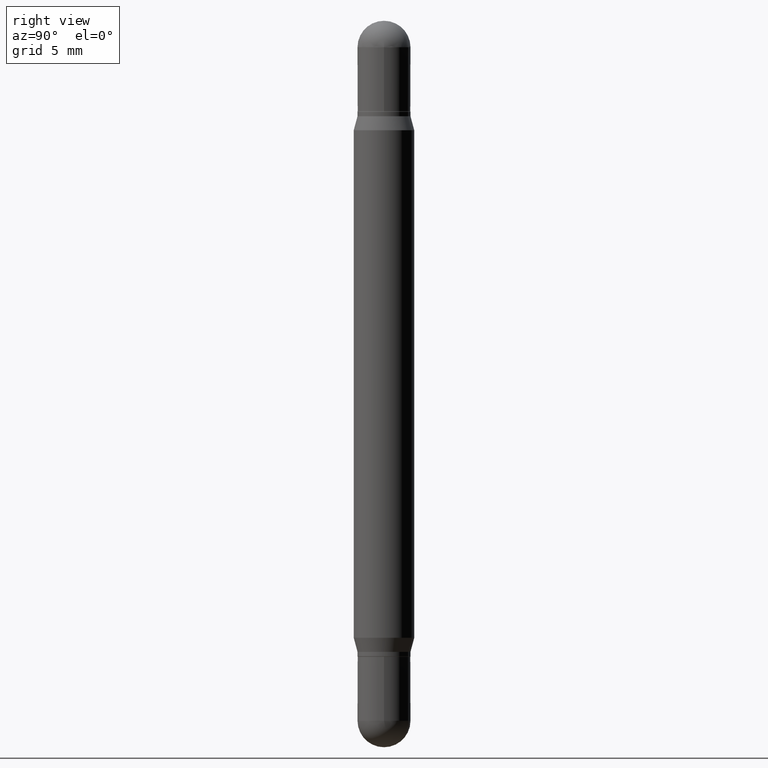
[diagram: clean part render]
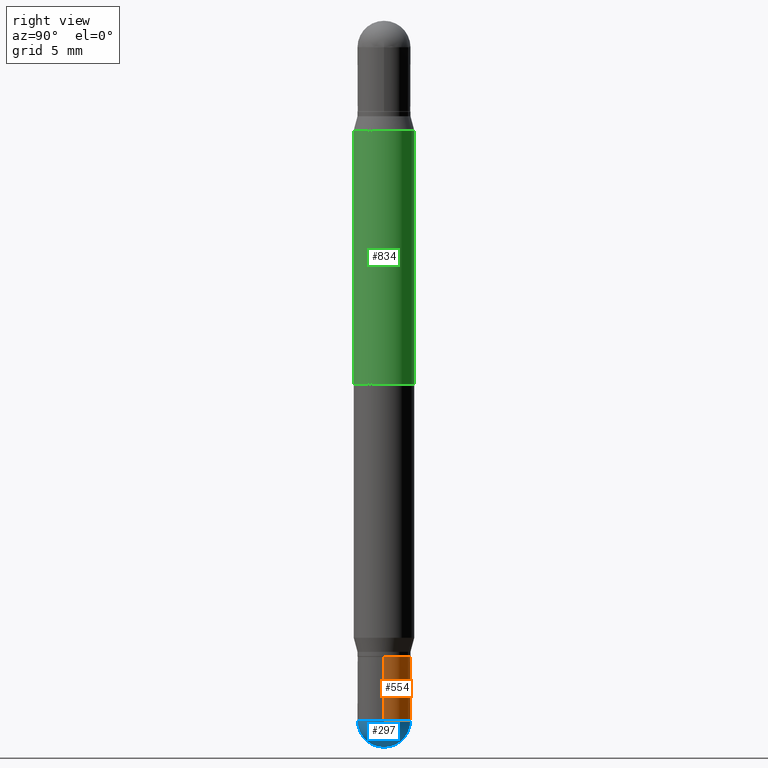
[diagram: same view with three faces highlighted in distinct colors, each labeled with its STEP entity id]
A machine part, right view with three faces highlighted in distinct colors.
Their STEP definitions:

[orange] entity #554 — the highlighted cylindrical surface (edge-blend (fillet) strip) has radius 1.3894 mm, axis along (-0, 0, 1).
#2 = CARTESIAN_POINT ( 'NONE',  ( 3.886668764608108330E-16, 0.05469999999999505119, -1.445300000000000251 ) ) ;
#11 = ORIENTED_EDGE ( 'NONE', *, *, #1096, .T. ) ;
#66 = CARTESIAN_POINT ( 'NONE',  ( 0.05470000000000000556, -5.197244546934962984E-15, -1.445300000000000029 ) ) ;
#76 = DIRECTION ( 'NONE',  ( 1.000000000000000000, -6.982962677686266711E-15, 4.876176775795935793E-29 ) ) ;
#105 = CIRCLE ( 'NONE', #950, 0.05470000000000000556 ) ;
#106 = DIRECTION ( 'NONE',  ( 1.000000000000000000, -6.982962677686260400E-15, 0.000000000000000000 ) ) ;
#147 = VERTEX_POINT ( 'NONE', #677 ) ;
#160 = VERTEX_POINT ( 'NONE', #1020 ) ;
#200 = EDGE_CURVE ( 'NONE', #147, #160, #609, .T. ) ;
#207 = LINE ( 'NONE', #1050, #741 ) ;
#216 = AXIS2_PLACEMENT_3D ( 'NONE', #545, #529, #106 ) ;
#245 = DIRECTION ( 'NONE',  ( -2.445468806185136597E-29, 3.491481338843145583E-15, 1.000000000000000000 ) ) ;
#247 = EDGE_LOOP ( 'NONE', ( #442, #11, #411, #685, #519 ) ) ;
#257 = VERTEX_POINT ( 'NONE', #2 ) ;
#341 = CYLINDRICAL_SURFACE ( 'NONE', #978, 0.05469999999999999862 ) ;
#388 = DIRECTION ( 'NONE',  ( 1.000000000000000000, -6.982962677686259611E-15, 0.000000000000000000 ) ) ;
#411 = ORIENTED_EDGE ( 'NONE', *, *, #200, .F. ) ;
#442 = ORIENTED_EDGE ( 'NONE', *, *, #1067, .T. ) ;
#451 = VERTEX_POINT ( 'NONE', #66 ) ;
#494 = DIRECTION ( 'NONE',  ( -2.445468806185136597E-29, 3.491481338843145583E-15, 1.000000000000000000 ) ) ;
#519 = ORIENTED_EDGE ( 'NONE', *, *, #822, .T. ) ;
#527 = CARTESIAN_POINT ( 'NONE',  ( -0.05470000000000000556, -4.426609612004749998E-15, -1.445300000000000029 ) ) ;
#529 = DIRECTION ( 'NONE',  ( -2.445468806185136597E-29, 3.491481338843145583E-15, 1.000000000000000000 ) ) ;
#533 = VERTEX_POINT ( 'NONE', #527 ) ;
#545 = CARTESIAN_POINT ( 'NONE',  ( 3.210900542521084585E-29, -4.584314997901050598E-15, -1.313000000000000167 ) ) ;
#552 = EDGE_CURVE ( 'NONE', #451, #147, #674, .T. ) ;
#554 = ADVANCED_FACE ( 'NONE', ( #947 ), #341, .T. ) ;
#609 = CIRCLE ( 'NONE', #216, 0.05469999999999999862 ) ;
#669 = CIRCLE ( 'NONE', #766, 0.05470000000000000556 ) ;
#674 = LINE ( 'NONE', #702, #1065 ) ;
#677 = CARTESIAN_POINT ( 'NONE',  ( 0.05469999999999999862, -4.966283056370488990E-15, -1.313000000000000167 ) ) ;
#685 = ORIENTED_EDGE ( 'NONE', *, *, #552, .F. ) ;
#702 = CARTESIAN_POINT ( 'NONE',  ( 0.05469999999999999862, -3.819680584694387859E-16, 2.667268696360376954E-30 ) ) ;
#741 = VECTOR ( 'NONE', #898, 39.37007874015748143 ) ;
#766 = AXIS2_PLACEMENT_3D ( 'NONE', #820, #494, #388 ) ;
#782 = DIRECTION ( 'NONE',  ( -2.445468806185136597E-29, 3.491481338843145583E-15, 1.000000000000000000 ) ) ;
#820 = CARTESIAN_POINT ( 'NONE',  ( 3.534436065579377749E-29, -5.046237979029997798E-15, -1.445300000000000029 ) ) ;
#822 = EDGE_CURVE ( 'NONE', #451, #257, #669, .T. ) ;
#898 = DIRECTION ( 'NONE',  ( -2.445468806185136877E-29, 3.491481338843145188E-15, 1.000000000000000000 ) ) ;
#929 = DIRECTION ( 'NONE',  ( -2.445468806185136877E-29, 3.491481338843145188E-15, 1.000000000000000000 ) ) ;
#939 = CARTESIAN_POINT ( 'NONE',  ( 3.534436065579377749E-29, -5.046237979029997798E-15, -1.445300000000000029 ) ) ;
#940 = CARTESIAN_POINT ( 'NONE',  ( 0.000000000000000000, 0.000000000000000000, 0.000000000000000000 ) ) ;
#947 = FACE_OUTER_BOUND ( 'NONE', #247, .T. ) ;
#950 = AXIS2_PLACEMENT_3D ( 'NONE', #939, #782, #1012 ) ;
#978 = AXIS2_PLACEMENT_3D ( 'NONE', #940, #245, #76 ) ;
#1012 = DIRECTION ( 'NONE',  ( 1.000000000000000000, -6.982962677686259611E-15, 0.000000000000000000 ) ) ;
#1020 = CARTESIAN_POINT ( 'NONE',  ( -0.05469999999999999862, -4.426609612004749998E-15, -1.313000000000000167 ) ) ;
#1050 = CARTESIAN_POINT ( 'NONE',  ( -0.05469999999999999862, 3.886668764607747919E-16, -2.690657494369433708E-30 ) ) ;
#1065 = VECTOR ( 'NONE', #929, 39.37007874015748143 ) ;
#1067 = EDGE_CURVE ( 'NONE', #257, #533, #105, .T. ) ;
#1096 = EDGE_CURVE ( 'NONE', #533, #160, #207, .T. ) ;

[blue] entity #297 — the highlighted spherical surface has radius 1.3894 mm.
#2 = CARTESIAN_POINT ( 'NONE',  ( 3.886668764608108330E-16, 0.05469999999999505119, -1.445300000000000251 ) ) ;
#12 = CARTESIAN_POINT ( 'NONE',  ( 3.529758305977566399E-29, -5.052936797021334001E-15, -1.445300000000000029 ) ) ;
#45 = CARTESIAN_POINT ( 'NONE',  ( 3.534436065579377749E-29, -5.046237979029997798E-15, -1.445300000000000029 ) ) ;
#52 = DIRECTION ( 'NONE',  ( 1.000000000000000000, -7.105427357601001070E-15, 4.926315508542082329E-29 ) ) ;
#66 = CARTESIAN_POINT ( 'NONE',  ( 0.05470000000000000556, -5.197244546934962984E-15, -1.445300000000000029 ) ) ;
#96 = DIRECTION ( 'NONE',  ( -6.982962677686265922E-15, -1.000000000000000000, 4.994237648380719522E-15 ) ) ;
#97 = ORIENTED_EDGE ( 'NONE', *, *, #524, .F. ) ;
#198 = SPHERICAL_SURFACE ( 'NONE', #202, 0.05470000000000019291 ) ;
#202 = AXIS2_PLACEMENT_3D ( 'NONE', #627, #863, #96 ) ;
#206 = EDGE_LOOP ( 'NONE', ( #97, #348, #242, #655 ) ) ;
#242 = ORIENTED_EDGE ( 'NONE', *, *, #822, .F. ) ;
#257 = VERTEX_POINT ( 'NONE', #2 ) ;
#297 = ADVANCED_FACE ( 'NONE', ( #801 ), #198, .T. ) ;
#348 = ORIENTED_EDGE ( 'NONE', *, *, #489, .T. ) ;
#388 = DIRECTION ( 'NONE',  ( 1.000000000000000000, -6.982962677686259611E-15, 0.000000000000000000 ) ) ;
#451 = VERTEX_POINT ( 'NONE', #66 ) ;
#485 = DIRECTION ( 'NONE',  ( 1.000000000000000000, -6.982962677686259611E-15, 0.000000000000000000 ) ) ;
#489 = EDGE_CURVE ( 'NONE', #712, #257, #547, .T. ) ;
#494 = DIRECTION ( 'NONE',  ( -2.445468806185136597E-29, 3.491481338843145583E-15, 1.000000000000000000 ) ) ;
#524 = EDGE_CURVE ( 'NONE', #712, #796, #759, .T. ) ;
#547 = CIRCLE ( 'NONE', #916, 0.05470000000000019291 ) ;
#566 = DIRECTION ( 'NONE',  ( -2.445468806185136597E-29, 3.491481338843145583E-15, 1.000000000000000000 ) ) ;
#627 = CARTESIAN_POINT ( 'NONE',  ( 3.529758305977566399E-29, -5.052936797021334001E-15, -1.445300000000000029 ) ) ;
#650 = AXIS2_PLACEMENT_3D ( 'NONE', #45, #566, #485 ) ;
#655 = ORIENTED_EDGE ( 'NONE', *, *, #907, .F. ) ;
#656 = DIRECTION ( 'NONE',  ( 7.105427357601001070E-15, 1.000000000000000000, 0.000000000000000000 ) ) ;
#669 = CIRCLE ( 'NONE', #766, 0.05470000000000000556 ) ;
#680 = DIRECTION ( 'NONE',  ( -1.000000000000000000, 6.982962677686265922E-15, -4.883557194083112340E-29 ) ) ;
#686 = DIRECTION ( 'NONE',  ( -6.982962677686266711E-15, -1.000000000000000000, 0.000000000000000000 ) ) ;
#712 = VERTEX_POINT ( 'NONE', #812 ) ;
#725 = AXIS2_PLACEMENT_3D ( 'NONE', #12, #680, #686 ) ;
#759 = CIRCLE ( 'NONE', #725, 0.05470000000000019291 ) ;
#766 = AXIS2_PLACEMENT_3D ( 'NONE', #820, #494, #388 ) ;
#796 = VERTEX_POINT ( 'NONE', #900 ) ;
#801 = FACE_OUTER_BOUND ( 'NONE', #206, .T. ) ;
#812 = CARTESIAN_POINT ( 'NONE',  ( 3.661186569874987869E-29, -5.247270235251722876E-15, -1.500000000000000222 ) ) ;
#820 = CARTESIAN_POINT ( 'NONE',  ( 3.534436065579377749E-29, -5.046237979029997798E-15, -1.445300000000000029 ) ) ;
#822 = EDGE_CURVE ( 'NONE', #451, #257, #669, .T. ) ;
#825 = CARTESIAN_POINT ( 'NONE',  ( 3.529758305977566399E-29, -5.052936797021334001E-15, -1.445300000000000029 ) ) ;
#843 = CIRCLE ( 'NONE', #650, 0.05470000000000000556 ) ;
#863 = DIRECTION ( 'NONE',  ( 1.000000000000000000, -6.982962677686265922E-15, 4.883557194083113462E-29 ) ) ;
#900 = CARTESIAN_POINT ( 'NONE',  ( -3.819680584694040760E-16, -0.05470000000000515422, -1.445299999999999807 ) ) ;
#907 = EDGE_CURVE ( 'NONE', #796, #451, #843, .T. ) ;
#916 = AXIS2_PLACEMENT_3D ( 'NONE', #825, #52, #656 ) ;

[green] entity #834 — the highlighted cylindrical surface (edge-blend (fillet) strip) has radius 1.5875 mm, axis along (-0, -0, -1).
#131 = CARTESIAN_POINT ( 'NONE',  ( 0.000000000000000000, -5.228321854365732350E-15, -1.500000000000000444 ) ) ;
#190 = CARTESIAN_POINT ( 'NONE',  ( -4.364351673553916201E-16, -0.06250000000000521805, -1.500000000000000222 ) ) ;
#196 = DIRECTION ( 'NONE',  ( -2.445609517047438880E-29, -3.479815972941410420E-15, -1.000000000000000000 ) ) ;
#220 = LINE ( 'NONE', #960, #886 ) ;
#222 = DIRECTION ( 'NONE',  ( -6.982962677686265922E-15, -1.000000000000000000, 4.370956789862821150E-15 ) ) ;
#228 = DIRECTION ( 'NONE',  ( 2.445609517047439160E-29, 3.479815972941410420E-15, 1.000000000000000000 ) ) ;
#264 = AXIS2_PLACEMENT_3D ( 'NONE', #131, #573, #222 ) ;
#311 = EDGE_CURVE ( 'NONE', #970, #763, #220, .T. ) ;
#324 = VECTOR ( 'NONE', #196, 39.37007874015748143 ) ;
#351 = DIRECTION ( 'NONE',  ( -2.445609517047438880E-29, -3.479815972941410420E-15, -1.000000000000000000 ) ) ;
#366 = EDGE_CURVE ( 'NONE', #881, #970, #955, .T. ) ;
#390 = DIRECTION ( 'NONE',  ( -6.982962677686265922E-15, -1.000000000000000000, 3.278217592397115862E-15 ) ) ;
#419 = EDGE_LOOP ( 'NONE', ( #962, #447, #1105, #1080 ) ) ;
#447 = ORIENTED_EDGE ( 'NONE', *, *, #366, .F. ) ;
#449 = LINE ( 'NONE', #190, #324 ) ;
#474 = CIRCLE ( 'NONE', #505, 0.06250000000000000000 ) ;
#505 = AXIS2_PLACEMENT_3D ( 'NONE', #1036, #1024, #601 ) ;
#528 = VERTEX_POINT ( 'NONE', #846 ) ;
#558 = EDGE_CURVE ( 'NONE', #763, #528, #474, .T. ) ;
#573 = DIRECTION ( 'NONE',  ( -2.445609517047439160E-29, -3.479815972941410420E-15, -1.000000000000000000 ) ) ;
#589 = CARTESIAN_POINT ( 'NONE',  ( 4.287811248607517840E-16, 0.06249999999999920203, -0.2261099962990389678 ) ) ;
#601 = DIRECTION ( 'NONE',  ( 0.000000000000000000, 1.000000000000000000, -4.370956789862821150E-15 ) ) ;
#638 = CARTESIAN_POINT ( 'NONE',  ( 4.287811248607454239E-16, 0.06249999999999737710, -0.7500000000000004441 ) ) ;
#654 = CARTESIAN_POINT ( 'NONE',  ( -4.364351673553605094E-16, -0.06250000000000079103, -0.2261099962990385792 ) ) ;
#659 = CARTESIAN_POINT ( 'NONE',  ( 3.115437516722669397E-29, -7.954190717167327940E-16, -0.2261099962990387735 ) ) ;
#752 = EDGE_CURVE ( 'NONE', #881, #528, #449, .T. ) ;
#763 = VERTEX_POINT ( 'NONE', #638 ) ;
#834 = ADVANCED_FACE ( 'NONE', ( #837 ), #1078, .T. ) ;
#837 = FACE_OUTER_BOUND ( 'NONE', #419, .T. ) ;
#846 = CARTESIAN_POINT ( 'NONE',  ( -4.364351673553732298E-16, -0.06250000000000262290, -0.7499999999999998890 ) ) ;
#881 = VERTEX_POINT ( 'NONE', #654 ) ;
#886 = VECTOR ( 'NONE', #351, 39.37007874015748143 ) ;
#955 = CIRCLE ( 'NONE', #1022, 0.06250000000000000000 ) ;
#960 = CARTESIAN_POINT ( 'NONE',  ( 4.287811248607206733E-16, 0.06249999999999477501, -1.500000000000000666 ) ) ;
#962 = ORIENTED_EDGE ( 'NONE', *, *, #311, .F. ) ;
#970 = VERTEX_POINT ( 'NONE', #589 ) ;
#1022 = AXIS2_PLACEMENT_3D ( 'NONE', #659, #228, #390 ) ;
#1024 = DIRECTION ( 'NONE',  ( -0.000000000000000000, -3.485547902910486918E-15, -1.000000000000000000 ) ) ;
#1036 = CARTESIAN_POINT ( 'NONE',  ( 1.834207137785579931E-29, -2.618459874659673549E-15, -0.7500000000000002220 ) ) ;
#1078 = CYLINDRICAL_SURFACE ( 'NONE', #264, 0.06250000000000000000 ) ;
#1080 = ORIENTED_EDGE ( 'NONE', *, *, #558, .F. ) ;
#1105 = ORIENTED_EDGE ( 'NONE', *, *, #752, .T. ) ;